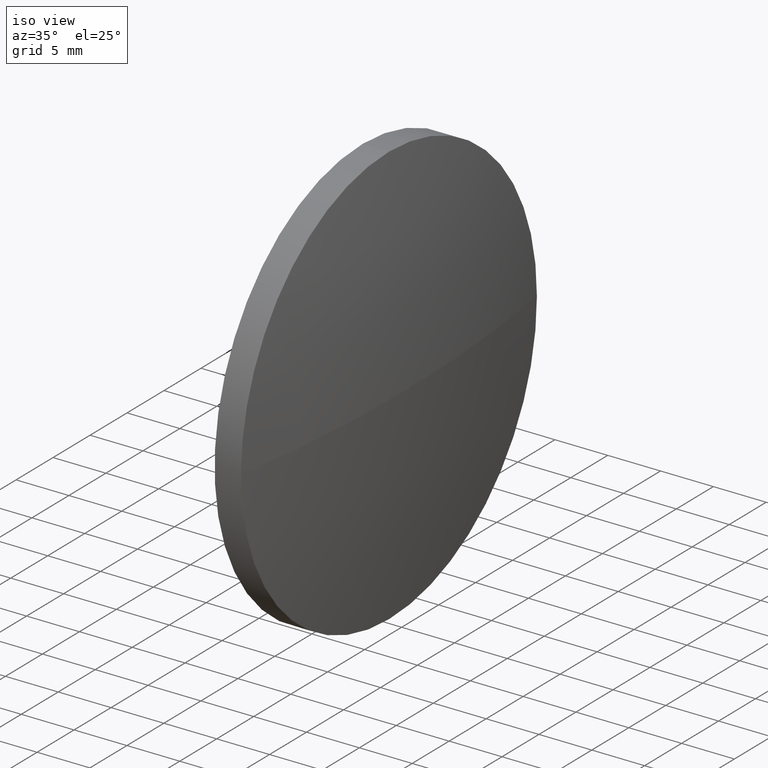
[diagram: clean part render]
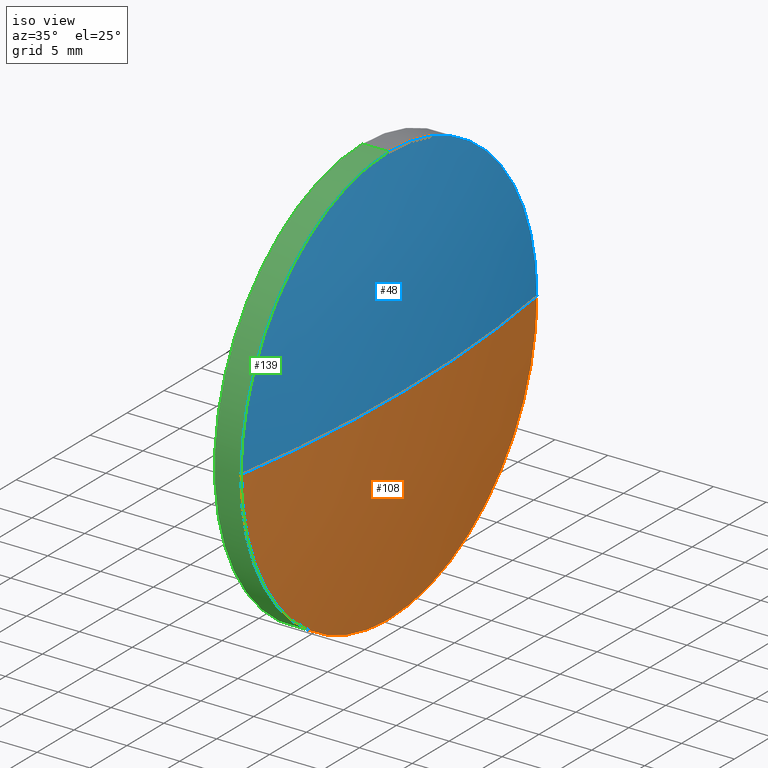
[diagram: same view with three faces highlighted in distinct colors, each labeled with its STEP entity id]
A machine part, iso view with three faces highlighted in distinct colors.
Their STEP definitions:

[orange] entity #108 — the highlighted spherical surface has radius 128.985 mm.
#4 = VERTEX_POINT ( 'NONE', #36 ) ;
#11 = DIRECTION ( 'NONE',  ( -0.0000000000000000000, 0.0000000000000000000, -1.000000000000000000 ) ) ;
#15 = AXIS2_PLACEMENT_3D ( 'NONE', #171, #185, #29 ) ;
#18 = DIRECTION ( 'NONE',  ( 0.0000000000000000000, 1.224646799147353200E-016, -1.000000000000000000 ) ) ;
#27 = VERTEX_POINT ( 'NONE', #130 ) ;
#29 = DIRECTION ( 'NONE',  ( 0.0000000000000000000, 0.0000000000000000000, 1.000000000000000000 ) ) ;
#31 = CIRCLE ( 'NONE', #61, 128.9851282051280900 ) ;
#35 = DIRECTION ( 'NONE',  ( 0.0000000000000000000, 0.0000000000000000000, 1.000000000000000000 ) ) ;
#36 = CARTESIAN_POINT ( 'NONE',  ( 884.4042952388408600, 289.1403647376604300, 0.0000000000000000000 ) ) ;
#39 = AXIS2_PLACEMENT_3D ( 'NONE', #71, #174, #35 ) ;
#47 = CIRCLE ( 'NONE', #15, 19.99999999999996100 ) ;
#51 = ORIENTED_EDGE ( 'NONE', *, *, #69, .F. ) ;
#54 = DIRECTION ( 'NONE',  ( 1.000000000000000000, 0.0000000000000000000, 0.0000000000000000000 ) ) ;
#61 = AXIS2_PLACEMENT_3D ( 'NONE', #137, #18, #123 ) ;
#65 = CIRCLE ( 'NONE', #120, 128.9851282051280900 ) ;
#66 = CARTESIAN_POINT ( 'NONE',  ( 756.9791670337127700, 269.1403647376603800, 0.0000000000000000000 ) ) ;
#69 = EDGE_CURVE ( 'NONE', #4, #136, #47, .T. ) ;
#71 = CARTESIAN_POINT ( 'NONE',  ( 884.4042952388408600, 269.1403647376604300, 0.0000000000000000000 ) ) ;
#91 = CARTESIAN_POINT ( 'NONE',  ( 884.4042952388408600, 249.1403647376604300, -2.449293598294702600E-015 ) ) ;
#92 = DIRECTION ( 'NONE',  ( -0.0000000000000000000, 0.0000000000000000000, 1.000000000000000000 ) ) ;
#100 = SPHERICAL_SURFACE ( 'NONE', #178, 128.9851282051280900 ) ;
#102 = EDGE_CURVE ( 'NONE', #27, #143, #31, .T. ) ;
#108 = ADVANCED_FACE ( 'NONE', ( #163 ), #100, .T. ) ;
#109 = DIRECTION ( 'NONE',  ( 0.0000000000000000000, 1.000000000000000000, 0.0000000000000000000 ) ) ;
#116 = ORIENTED_EDGE ( 'NONE', *, *, #102, .T. ) ;
#120 = AXIS2_PLACEMENT_3D ( 'NONE', #66, #92, #54 ) ;
#123 = DIRECTION ( 'NONE',  ( 0.0000000000000000000, 1.000000000000000000, 1.224646799147353200E-016 ) ) ;
#130 = CARTESIAN_POINT ( 'NONE',  ( 885.9642952388409200, 269.1403647376603800, 0.0000000000000000000 ) ) ;
#136 = VERTEX_POINT ( 'NONE', #182 ) ;
#137 = CARTESIAN_POINT ( 'NONE',  ( 756.9791670337127700, 269.1403647376603800, 0.0000000000000000000 ) ) ;
#140 = CARTESIAN_POINT ( 'NONE',  ( 756.9791670337127700, 269.1403647376603800, 0.0000000000000000000 ) ) ;
#141 = CIRCLE ( 'NONE', #39, 19.99999999999996100 ) ;
#143 = VERTEX_POINT ( 'NONE', #91 ) ;
#149 = ORIENTED_EDGE ( 'NONE', *, *, #179, .F. ) ;
#155 = ORIENTED_EDGE ( 'NONE', *, *, #170, .F. ) ;
#161 = EDGE_LOOP ( 'NONE', ( #149, #116, #155, #51 ) ) ;
#163 = FACE_OUTER_BOUND ( 'NONE', #161, .T. ) ;
#170 = EDGE_CURVE ( 'NONE', #136, #143, #141, .T. ) ;
#171 = CARTESIAN_POINT ( 'NONE',  ( 884.4042952388408600, 269.1403647376604300, 0.0000000000000000000 ) ) ;
#174 = DIRECTION ( 'NONE',  ( -1.000000000000000000, -0.0000000000000000000, -0.0000000000000000000 ) ) ;
#178 = AXIS2_PLACEMENT_3D ( 'NONE', #140, #11, #109 ) ;
#179 = EDGE_CURVE ( 'NONE', #27, #4, #65, .T. ) ;
#182 = CARTESIAN_POINT ( 'NONE',  ( 884.4042952388408600, 269.1403647376604300, -19.99999999999996100 ) ) ;
#185 = DIRECTION ( 'NONE',  ( -1.000000000000000000, -0.0000000000000000000, -0.0000000000000000000 ) ) ;

[blue] entity #48 — the highlighted spherical surface has radius 128.985 mm.
#4 = VERTEX_POINT ( 'NONE', #36 ) ;
#9 = DIRECTION ( 'NONE',  ( 0.0000000000000000000, 0.0000000000000000000, 1.000000000000000000 ) ) ;
#10 = DIRECTION ( 'NONE',  ( -1.000000000000000000, -0.0000000000000000000, -0.0000000000000000000 ) ) ;
#18 = DIRECTION ( 'NONE',  ( 0.0000000000000000000, 1.224646799147353200E-016, -1.000000000000000000 ) ) ;
#24 = ORIENTED_EDGE ( 'NONE', *, *, #102, .F. ) ;
#25 = DIRECTION ( 'NONE',  ( -0.0000000000000000000, 0.0000000000000000000, -1.000000000000000000 ) ) ;
#27 = VERTEX_POINT ( 'NONE', #130 ) ;
#31 = CIRCLE ( 'NONE', #61, 128.9851282051280900 ) ;
#36 = CARTESIAN_POINT ( 'NONE',  ( 884.4042952388408600, 289.1403647376604300, 0.0000000000000000000 ) ) ;
#37 = DIRECTION ( 'NONE',  ( 0.0000000000000000000, 1.000000000000000000, 0.0000000000000000000 ) ) ;
#38 = ORIENTED_EDGE ( 'NONE', *, *, #115, .F. ) ;
#48 = ADVANCED_FACE ( 'NONE', ( #131 ), #176, .T. ) ;
#49 = CARTESIAN_POINT ( 'NONE',  ( 884.4042952388408600, 269.1403647376604300, 0.0000000000000000000 ) ) ;
#54 = DIRECTION ( 'NONE',  ( 1.000000000000000000, 0.0000000000000000000, 0.0000000000000000000 ) ) ;
#61 = AXIS2_PLACEMENT_3D ( 'NONE', #137, #18, #123 ) ;
#65 = CIRCLE ( 'NONE', #120, 128.9851282051280900 ) ;
#66 = CARTESIAN_POINT ( 'NONE',  ( 756.9791670337127700, 269.1403647376603800, 0.0000000000000000000 ) ) ;
#77 = DIRECTION ( 'NONE',  ( -1.000000000000000000, -0.0000000000000000000, -0.0000000000000000000 ) ) ;
#80 = CARTESIAN_POINT ( 'NONE',  ( 884.4042952388408600, 269.1403647376604300, 19.99999999999996100 ) ) ;
#81 = VERTEX_POINT ( 'NONE', #80 ) ;
#84 = AXIS2_PLACEMENT_3D ( 'NONE', #153, #10, #9 ) ;
#87 = EDGE_CURVE ( 'NONE', #81, #4, #166, .T. ) ;
#91 = CARTESIAN_POINT ( 'NONE',  ( 884.4042952388408600, 249.1403647376604300, -2.449293598294702600E-015 ) ) ;
#92 = DIRECTION ( 'NONE',  ( -0.0000000000000000000, 0.0000000000000000000, 1.000000000000000000 ) ) ;
#96 = ORIENTED_EDGE ( 'NONE', *, *, #179, .T. ) ;
#97 = CARTESIAN_POINT ( 'NONE',  ( 756.9791670337127700, 269.1403647376603800, 0.0000000000000000000 ) ) ;
#98 = CIRCLE ( 'NONE', #99, 19.99999999999996100 ) ;
#99 = AXIS2_PLACEMENT_3D ( 'NONE', #49, #77, #121 ) ;
#102 = EDGE_CURVE ( 'NONE', #27, #143, #31, .T. ) ;
#105 = ORIENTED_EDGE ( 'NONE', *, *, #87, .F. ) ;
#115 = EDGE_CURVE ( 'NONE', #143, #81, #98, .T. ) ;
#120 = AXIS2_PLACEMENT_3D ( 'NONE', #66, #92, #54 ) ;
#121 = DIRECTION ( 'NONE',  ( 0.0000000000000000000, 0.0000000000000000000, 1.000000000000000000 ) ) ;
#123 = DIRECTION ( 'NONE',  ( 0.0000000000000000000, 1.000000000000000000, 1.224646799147353200E-016 ) ) ;
#130 = CARTESIAN_POINT ( 'NONE',  ( 885.9642952388409200, 269.1403647376603800, 0.0000000000000000000 ) ) ;
#131 = FACE_OUTER_BOUND ( 'NONE', #183, .T. ) ;
#137 = CARTESIAN_POINT ( 'NONE',  ( 756.9791670337127700, 269.1403647376603800, 0.0000000000000000000 ) ) ;
#143 = VERTEX_POINT ( 'NONE', #91 ) ;
#153 = CARTESIAN_POINT ( 'NONE',  ( 884.4042952388408600, 269.1403647376604300, 0.0000000000000000000 ) ) ;
#165 = AXIS2_PLACEMENT_3D ( 'NONE', #97, #25, #37 ) ;
#166 = CIRCLE ( 'NONE', #84, 19.99999999999996100 ) ;
#176 = SPHERICAL_SURFACE ( 'NONE', #165, 128.9851282051280900 ) ;
#179 = EDGE_CURVE ( 'NONE', #27, #4, #65, .T. ) ;
#183 = EDGE_LOOP ( 'NONE', ( #24, #96, #105, #38 ) ) ;

[green] entity #139 — the highlighted cylindrical surface (partial cylindrical patch) has radius 20 mm, axis along (-1, -0, -0).
#8 = CYLINDRICAL_SURFACE ( 'NONE', #55, 19.99999999999996100 ) ;
#13 = CARTESIAN_POINT ( 'NONE',  ( 872.3977979190676700, 269.1403647376604300, 19.99999999999996100 ) ) ;
#14 = ORIENTED_EDGE ( 'NONE', *, *, #93, .F. ) ;
#16 = LINE ( 'NONE', #13, #134 ) ;
#17 = CARTESIAN_POINT ( 'NONE',  ( 872.3977979190676700, 269.1403647376604300, -19.99999999999996100 ) ) ;
#22 = CARTESIAN_POINT ( 'NONE',  ( 881.9042952388408600, 269.1403647376604300, 19.99999999999996100 ) ) ;
#26 = ORIENTED_EDGE ( 'NONE', *, *, #132, .F. ) ;
#30 = CARTESIAN_POINT ( 'NONE',  ( 881.9042952388408600, 269.1403647376604300, 0.0000000000000000000 ) ) ;
#35 = DIRECTION ( 'NONE',  ( 0.0000000000000000000, 0.0000000000000000000, 1.000000000000000000 ) ) ;
#39 = AXIS2_PLACEMENT_3D ( 'NONE', #71, #174, #35 ) ;
#40 = CIRCLE ( 'NONE', #53, 19.99999999999996100 ) ;
#44 = DIRECTION ( 'NONE',  ( -1.000000000000000000, -0.0000000000000000000, -0.0000000000000000000 ) ) ;
#45 = DIRECTION ( 'NONE',  ( 0.0000000000000000000, 0.0000000000000000000, 1.000000000000000000 ) ) ;
#49 = CARTESIAN_POINT ( 'NONE',  ( 884.4042952388408600, 269.1403647376604300, 0.0000000000000000000 ) ) ;
#53 = AXIS2_PLACEMENT_3D ( 'NONE', #30, #157, #45 ) ;
#55 = AXIS2_PLACEMENT_3D ( 'NONE', #156, #44, #64 ) ;
#58 = LINE ( 'NONE', #17, #135 ) ;
#64 = DIRECTION ( 'NONE',  ( 0.0000000000000000000, 0.0000000000000000000, 1.000000000000000000 ) ) ;
#68 = VERTEX_POINT ( 'NONE', #169 ) ;
#71 = CARTESIAN_POINT ( 'NONE',  ( 884.4042952388408600, 269.1403647376604300, 0.0000000000000000000 ) ) ;
#73 = ORIENTED_EDGE ( 'NONE', *, *, #170, .T. ) ;
#76 = EDGE_LOOP ( 'NONE', ( #26, #73, #152, #177, #14 ) ) ;
#77 = DIRECTION ( 'NONE',  ( -1.000000000000000000, -0.0000000000000000000, -0.0000000000000000000 ) ) ;
#80 = CARTESIAN_POINT ( 'NONE',  ( 884.4042952388408600, 269.1403647376604300, 19.99999999999996100 ) ) ;
#81 = VERTEX_POINT ( 'NONE', #80 ) ;
#91 = CARTESIAN_POINT ( 'NONE',  ( 884.4042952388408600, 249.1403647376604300, -2.449293598294702600E-015 ) ) ;
#93 = EDGE_CURVE ( 'NONE', #68, #181, #40, .T. ) ;
#95 = DIRECTION ( 'NONE',  ( -1.000000000000000000, -0.0000000000000000000, -0.0000000000000000000 ) ) ;
#98 = CIRCLE ( 'NONE', #99, 19.99999999999996100 ) ;
#99 = AXIS2_PLACEMENT_3D ( 'NONE', #49, #77, #121 ) ;
#111 = FACE_OUTER_BOUND ( 'NONE', #76, .T. ) ;
#115 = EDGE_CURVE ( 'NONE', #143, #81, #98, .T. ) ;
#121 = DIRECTION ( 'NONE',  ( 0.0000000000000000000, 0.0000000000000000000, 1.000000000000000000 ) ) ;
#132 = EDGE_CURVE ( 'NONE', #136, #68, #58, .T. ) ;
#134 = VECTOR ( 'NONE', #95, 1000.000000000000000 ) ;
#135 = VECTOR ( 'NONE', #184, 1000.000000000000000 ) ;
#136 = VERTEX_POINT ( 'NONE', #182 ) ;
#139 = ADVANCED_FACE ( 'NONE', ( #111 ), #8, .T. ) ;
#141 = CIRCLE ( 'NONE', #39, 19.99999999999996100 ) ;
#142 = EDGE_CURVE ( 'NONE', #81, #181, #16, .T. ) ;
#143 = VERTEX_POINT ( 'NONE', #91 ) ;
#152 = ORIENTED_EDGE ( 'NONE', *, *, #115, .T. ) ;
#156 = CARTESIAN_POINT ( 'NONE',  ( 872.3977979190676700, 269.1403647376604300, 0.0000000000000000000 ) ) ;
#157 = DIRECTION ( 'NONE',  ( -1.000000000000000000, -0.0000000000000000000, -0.0000000000000000000 ) ) ;
#169 = CARTESIAN_POINT ( 'NONE',  ( 881.9042952388408600, 269.1403647376604300, -19.99999999999996100 ) ) ;
#170 = EDGE_CURVE ( 'NONE', #136, #143, #141, .T. ) ;
#174 = DIRECTION ( 'NONE',  ( -1.000000000000000000, -0.0000000000000000000, -0.0000000000000000000 ) ) ;
#177 = ORIENTED_EDGE ( 'NONE', *, *, #142, .T. ) ;
#181 = VERTEX_POINT ( 'NONE', #22 ) ;
#182 = CARTESIAN_POINT ( 'NONE',  ( 884.4042952388408600, 269.1403647376604300, -19.99999999999996100 ) ) ;
#184 = DIRECTION ( 'NONE',  ( -1.000000000000000000, -0.0000000000000000000, -0.0000000000000000000 ) ) ;